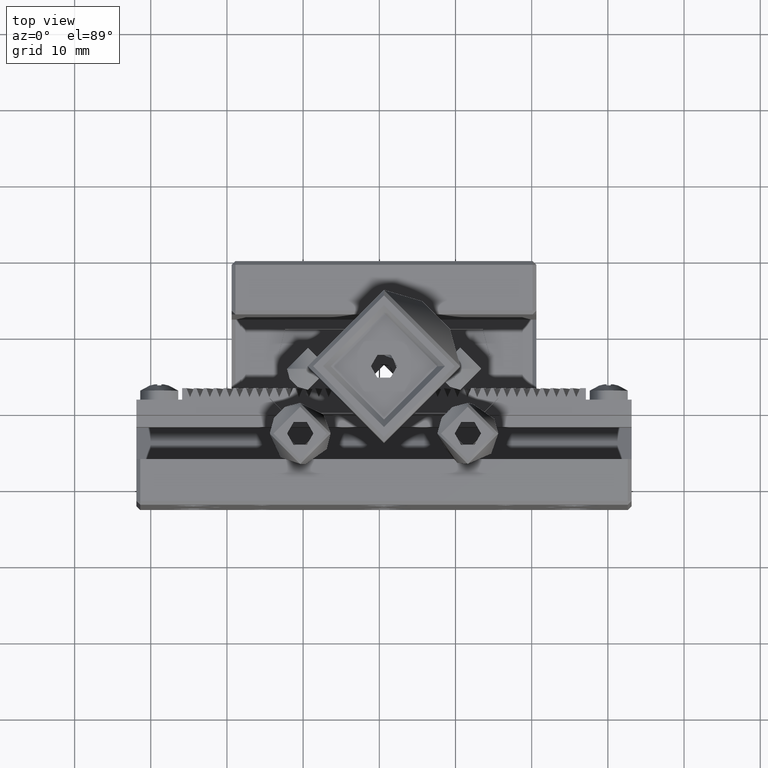
[diagram: clean part render]
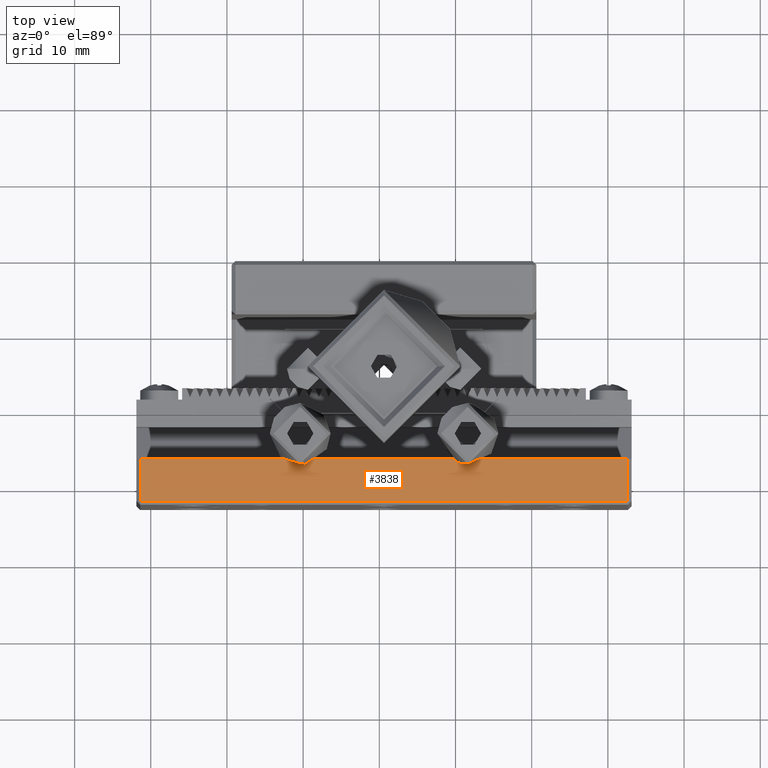
[diagram: same view with one face highlighted and labeled with its STEP entity id]
A machine part, top view. The second image highlights one B-rep face of the part: STEP entity #3838.
In plain terms, the highlighted planar face has unit normal (0, 0, 1).
Its self-contained STEP definition (entity closure, byte-faithful):
#482 = CARTESIAN_POINT ( 'NONE',  ( 52.61330177514788176, 8.052047337278104067, 20.00000000000000000 ) ) ;
#639 = VERTEX_POINT ( 'NONE', #17304 ) ;
#717 = DIRECTION ( 'NONE',  ( -1.000000000000000000, 0.000000000000000000, 0.000000000000000000 ) ) ;
#1211 = ORIENTED_EDGE ( 'NONE', *, *, #13184, .F. ) ;
#2279 = ORIENTED_EDGE ( 'NONE', *, *, #7083, .T. ) ;
#2888 = LINE ( 'NONE', #6250, #17328 ) ;
#3015 = ORIENTED_EDGE ( 'NONE', *, *, #7679, .T. ) ;
#3838 = ADVANCED_FACE ( 'NONE', ( #12995 ), #19619, .T. ) ;
#4187 = DIRECTION ( 'NONE',  ( 0.000000000000000000, -1.000000000000000000, 0.000000000000000000 ) ) ;
#4867 = DIRECTION ( 'NONE',  ( 1.000000000000000000, 0.000000000000000000, -0.000000000000000000 ) ) ;
#6250 = CARTESIAN_POINT ( 'NONE',  ( 52.61330177514788176, 13.55204733727810407, 20.00000000000000000 ) ) ;
#6946 = VERTEX_POINT ( 'NONE', #11233 ) ;
#7083 = EDGE_CURVE ( 'NONE', #18409, #9691, #17377, .T. ) ;
#7415 = VECTOR ( 'NONE', #11512, 1000.000000000000000 ) ;
#7679 = EDGE_CURVE ( 'NONE', #9691, #639, #9063, .T. ) ;
#9063 = LINE ( 'NONE', #20671, #20599 ) ;
#9691 = VERTEX_POINT ( 'NONE', #12441 ) ;
#9875 = VECTOR ( 'NONE', #717, 1000.000000000000000 ) ;
#9951 = DIRECTION ( 'NONE',  ( 0.000000000000000000, 0.000000000000000000, 1.000000000000000000 ) ) ;
#10209 = LINE ( 'NONE', #482, #7415 ) ;
#10310 = CARTESIAN_POINT ( 'NONE',  ( 52.61330177514788176, 13.55204733727810407, 20.00000000000000000 ) ) ;
#10660 = CARTESIAN_POINT ( 'NONE',  ( 52.61330177514788176, 13.55204733727810407, 20.00000000000000000 ) ) ;
#11115 = DIRECTION ( 'NONE',  ( 0.000000000000000000, -1.000000000000000000, 0.000000000000000000 ) ) ;
#11233 = CARTESIAN_POINT ( 'NONE',  ( 52.61330177514788176, 8.052047337278104067, 20.00000000000000000 ) ) ;
#11512 = DIRECTION ( 'NONE',  ( -1.000000000000000000, 0.000000000000000000, 0.000000000000000000 ) ) ;
#11996 = EDGE_LOOP ( 'NONE', ( #21184, #1211, #2279, #3015 ) ) ;
#12441 = CARTESIAN_POINT ( 'NONE',  ( -11.38669822485208627, 13.55204733727810407, 20.00000000000000000 ) ) ;
#12995 = FACE_OUTER_BOUND ( 'NONE', #11996, .T. ) ;
#13184 = EDGE_CURVE ( 'NONE', #18409, #6946, #2888, .T. ) ;
#15341 = AXIS2_PLACEMENT_3D ( 'NONE', #16469, #9951, #4867 ) ;
#16469 = CARTESIAN_POINT ( 'NONE',  ( 52.61330177514788176, 13.55204733727810407, 20.00000000000000000 ) ) ;
#17304 = CARTESIAN_POINT ( 'NONE',  ( -11.38669822485208627, 8.052047337278104067, 20.00000000000000000 ) ) ;
#17328 = VECTOR ( 'NONE', #11115, 1000.000000000000000 ) ;
#17377 = LINE ( 'NONE', #10660, #9875 ) ;
#18409 = VERTEX_POINT ( 'NONE', #10310 ) ;
#19619 = PLANE ( 'NONE',  #15341 ) ;
#20599 = VECTOR ( 'NONE', #4187, 1000.000000000000000 ) ;
#20671 = CARTESIAN_POINT ( 'NONE',  ( -11.38669822485208627, 13.55204733727810407, 20.00000000000000000 ) ) ;
#20676 = EDGE_CURVE ( 'NONE', #6946, #639, #10209, .T. ) ;
#21184 = ORIENTED_EDGE ( 'NONE', *, *, #20676, .F. ) ;